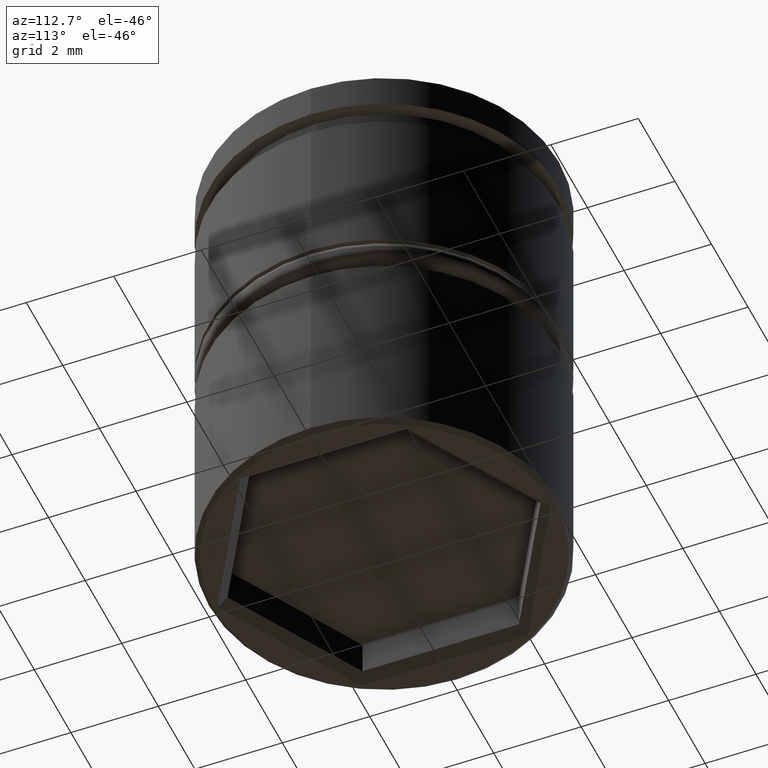
[diagram: clean part render]
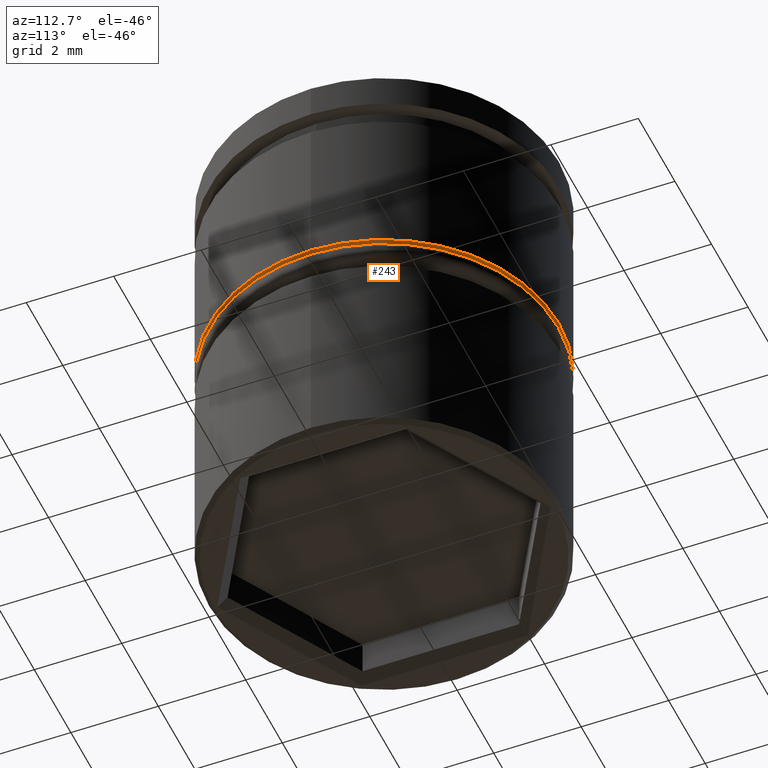
[diagram: same view with one face highlighted and labeled with its STEP entity id]
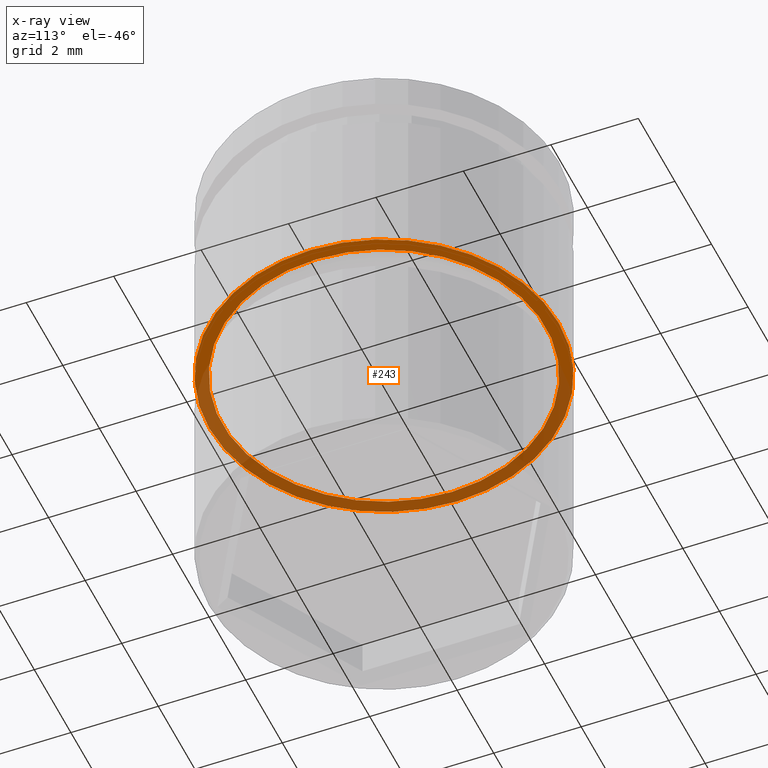
[diagram: x-ray of the same camera — body ghosted, the highlighted face saturated]
A machine part, auxiliary view. The second image highlights one B-rep face of the part: STEP entity #243.
The next image is the same camera in x-ray: the body ghosted, the highlighted face saturated — about 49% of this face is hidden behind the body in this view.
In plain terms, the highlighted planar face has unit normal (0, 0, -1).
Its self-contained STEP definition (entity closure, byte-faithful):
#13 = AXIS2_PLACEMENT_3D ( 'NONE', #1102, #288, #460 ) ;
#67 = CIRCLE ( 'NONE', #13, 4.000000000000000000 ) ;
#71 = VERTEX_POINT ( 'NONE', #829 ) ;
#73 = DIRECTION ( 'NONE',  ( -0.000000000000000000, -0.000000000000000000, 1.000000000000000000 ) ) ;
#84 = CARTESIAN_POINT ( 'NONE',  ( 4.000000000000000000, 0.000000000000000000, -4.999999999999999112 ) ) ;
#158 = EDGE_CURVE ( 'NONE', #71, #700, #431, .T. ) ;
#188 = DIRECTION ( 'NONE',  ( -0.000000000000000000, -0.000000000000000000, 1.000000000000000000 ) ) ;
#209 = EDGE_CURVE ( 'NONE', #449, #863, #67, .T. ) ;
#219 = CARTESIAN_POINT ( 'NONE',  ( 0.000000000000000000, 4.000000000000000000, -4.999999999999999112 ) ) ;
#225 = PLANE ( 'NONE',  #927 ) ;
#243 = ADVANCED_FACE ( 'NONE', ( #1141, #1060 ), #225, .T. ) ;
#251 = DIRECTION ( 'NONE',  ( 1.000000000000000000, 0.000000000000000000, 0.000000000000000000 ) ) ;
#256 = CARTESIAN_POINT ( 'NONE',  ( 0.000000000000000000, 0.000000000000000000, -4.999999999999999112 ) ) ;
#288 = DIRECTION ( 'NONE',  ( -0.000000000000000000, -0.000000000000000000, 1.000000000000000000 ) ) ;
#310 = EDGE_CURVE ( 'NONE', #863, #449, #980, .T. ) ;
#374 = ORIENTED_EDGE ( 'NONE', *, *, #158, .T. ) ;
#414 = EDGE_LOOP ( 'NONE', ( #430, #374 ) ) ;
#430 = ORIENTED_EDGE ( 'NONE', *, *, #496, .T. ) ;
#431 = CIRCLE ( 'NONE', #769, 3.700000000000000178 ) ;
#449 = VERTEX_POINT ( 'NONE', #84 ) ;
#460 = DIRECTION ( 'NONE',  ( 1.000000000000000000, 0.000000000000000000, 0.000000000000000000 ) ) ;
#492 = ORIENTED_EDGE ( 'NONE', *, *, #310, .F. ) ;
#496 = EDGE_CURVE ( 'NONE', #700, #71, #1130, .T. ) ;
#502 = EDGE_LOOP ( 'NONE', ( #650, #492 ) ) ;
#506 = AXIS2_PLACEMENT_3D ( 'NONE', #895, #73, #536 ) ;
#536 = DIRECTION ( 'NONE',  ( 1.000000000000000000, 0.000000000000000000, 0.000000000000000000 ) ) ;
#627 = DIRECTION ( 'NONE',  ( -0.000000000000000000, -0.000000000000000000, 1.000000000000000000 ) ) ;
#650 = ORIENTED_EDGE ( 'NONE', *, *, #209, .F. ) ;
#686 = DIRECTION ( 'NONE',  ( 0.000000000000000000, 0.000000000000000000, -1.000000000000000000 ) ) ;
#700 = VERTEX_POINT ( 'NONE', #1149 ) ;
#718 = CARTESIAN_POINT ( 'NONE',  ( -4.000000000000000000, 4.898587196589412829E-16, -4.999999999999999112 ) ) ;
#742 = DIRECTION ( 'NONE',  ( 1.000000000000000000, 0.000000000000000000, 0.000000000000000000 ) ) ;
#759 = DIRECTION ( 'NONE',  ( -1.000000000000000000, 0.000000000000000000, -0.000000000000000000 ) ) ;
#769 = AXIS2_PLACEMENT_3D ( 'NONE', #256, #627, #742 ) ;
#829 = CARTESIAN_POINT ( 'NONE',  ( -3.700000000000000178, 4.531193156845206201E-16, -4.999999999999999112 ) ) ;
#863 = VERTEX_POINT ( 'NONE', #718 ) ;
#895 = CARTESIAN_POINT ( 'NONE',  ( 0.000000000000000000, 0.000000000000000000, -4.999999999999999112 ) ) ;
#927 = AXIS2_PLACEMENT_3D ( 'NONE', #219, #686, #759 ) ;
#943 = AXIS2_PLACEMENT_3D ( 'NONE', #1167, #188, #251 ) ;
#980 = CIRCLE ( 'NONE', #506, 4.000000000000000000 ) ;
#1060 = FACE_OUTER_BOUND ( 'NONE', #502, .T. ) ;
#1102 = CARTESIAN_POINT ( 'NONE',  ( 0.000000000000000000, 0.000000000000000000, -4.999999999999999112 ) ) ;
#1130 = CIRCLE ( 'NONE', #943, 3.700000000000000178 ) ;
#1141 = FACE_BOUND ( 'NONE', #414, .T. ) ;
#1149 = CARTESIAN_POINT ( 'NONE',  ( 3.700000000000000178, 0.000000000000000000, -4.999999999999999112 ) ) ;
#1167 = CARTESIAN_POINT ( 'NONE',  ( 0.000000000000000000, 0.000000000000000000, -4.999999999999999112 ) ) ;